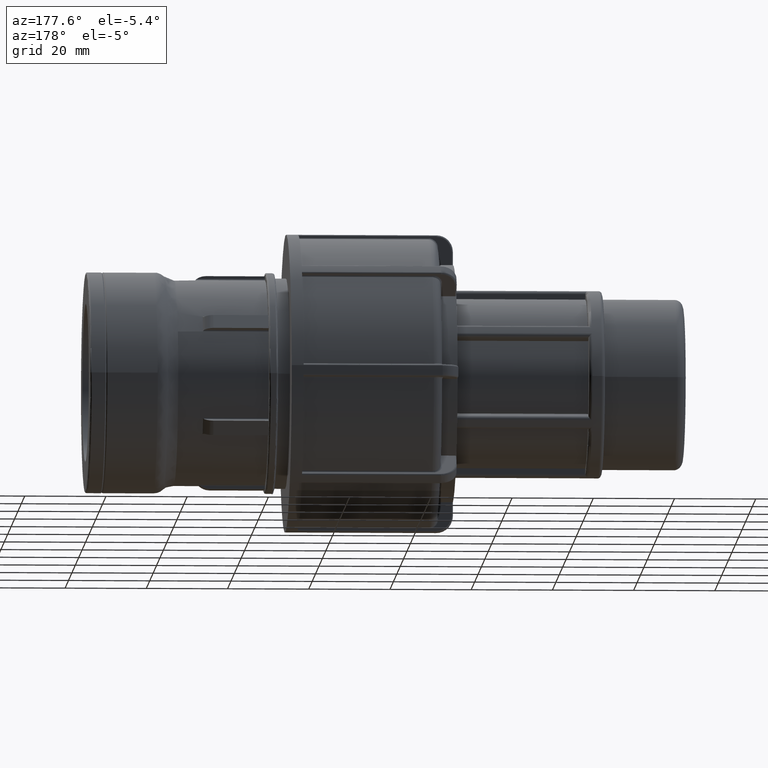
[diagram: clean part render]
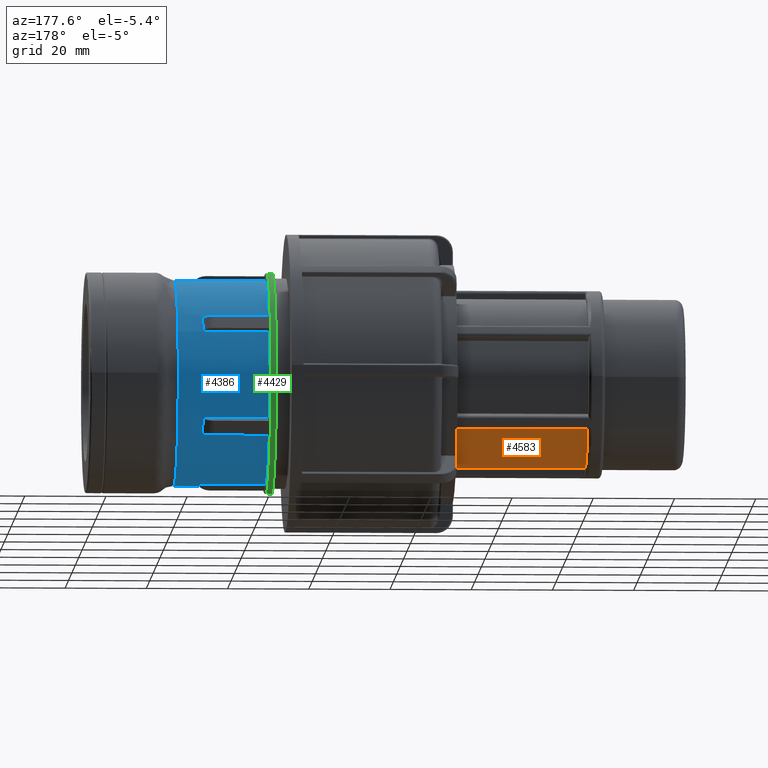
[diagram: same view with three faces highlighted in distinct colors, each labeled with its STEP entity id]
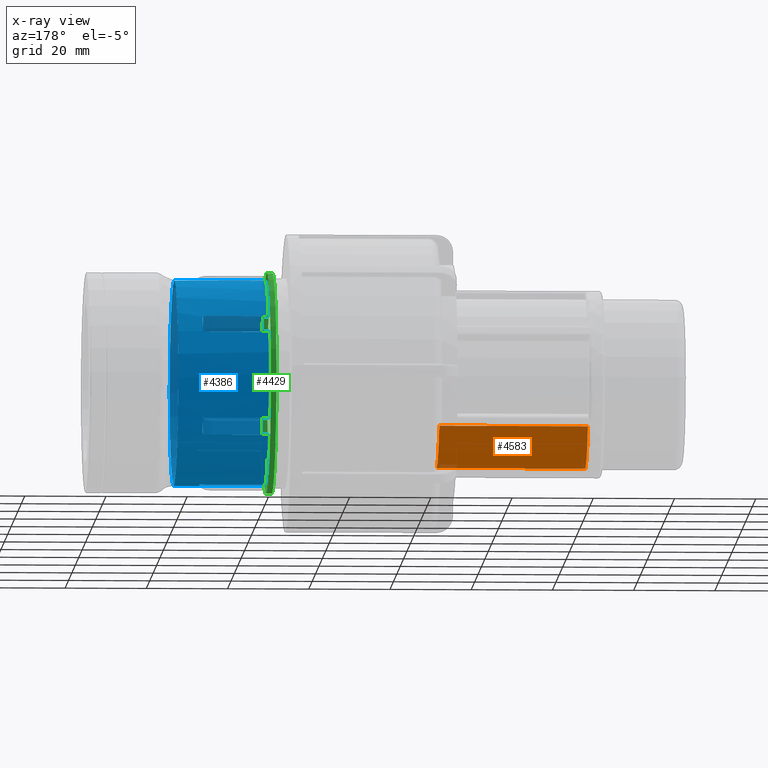
[diagram: x-ray of the same camera — body ghosted, the three highlighted faces saturated]
A machine part, auxiliary view with three faces highlighted in distinct colors.
The next image is the same camera in x-ray (body ghosted, the three faces saturated) — at least one of them is partly hidden behind the body in this view.
Their STEP definitions:

[orange] entity #4583 — the highlighted cylindrical surface (partial cylindrical patch) has radius 20.955 mm, axis along (1, 0, 0).
#186=LINE('',#6652,#465);
#423=LINE('',#9410,#702);
#465=VECTOR('',#5231,36.595);
#702=VECTOR('',#6212,36.595);
#827=CYLINDRICAL_SURFACE('',#5055,20.955);
#1068=FACE_OUTER_BOUND('',#1353,.T.);
#1353=EDGE_LOOP('',(#4183,#4184,#4185,#4186));
#1786=CIRCLE('',#5046,20.955);
#1791=CIRCLE('',#5056,20.955);
#1867=VERTEX_POINT('',#6649);
#1868=VERTEX_POINT('',#6651);
#2246=VERTEX_POINT('',#9407);
#2247=VERTEX_POINT('',#9409);
#2333=EDGE_CURVE('',#1868,#1867,#186,.T.);
#2907=EDGE_CURVE('',#2247,#2246,#423,.T.);
#2921=EDGE_CURVE('',#2247,#1867,#1786,.T.);
#2927=EDGE_CURVE('',#2246,#1868,#1791,.T.);
#4183=ORIENTED_EDGE('',*,*,#2333,.T.);
#4184=ORIENTED_EDGE('',*,*,#2921,.F.);
#4185=ORIENTED_EDGE('',*,*,#2907,.T.);
#4186=ORIENTED_EDGE('',*,*,#2927,.T.);
#4583=ADVANCED_FACE('',(#1068),#827,.T.);
#5046=AXIS2_PLACEMENT_3D('',#9433,#6237,#6238);
#5055=AXIS2_PLACEMENT_3D('',#9444,#6256,#6257);
#5056=AXIS2_PLACEMENT_3D('',#9445,#6258,#6259);
#5231=DIRECTION('',(1.,0.,0.));
#6212=DIRECTION('',(-1.,0.,0.));
#6237=DIRECTION('center_axis',(1.,0.,0.));
#6238=DIRECTION('ref_axis',(0.,0.,-1.));
#6256=DIRECTION('center_axis',(1.,0.,0.));
#6257=DIRECTION('ref_axis',(0.,1.,0.));
#6258=DIRECTION('center_axis',(1.,0.,0.));
#6259=DIRECTION('ref_axis',(0.,0.,-1.));
#6649=CARTESIAN_POINT('',(-86.405,17.2511969227832,-11.8957231697511));
#6651=CARTESIAN_POINT('',(-123.,17.2511969227832,-11.8957231697511));
#6652=CARTESIAN_POINT('',(-104.7025,17.2511969227832,-11.8957231697511));
#9407=CARTESIAN_POINT('',(-123.,1.6764,-20.8878363656938));
#9409=CARTESIAN_POINT('',(-86.405,1.6764,-20.8878363656938));
#9410=CARTESIAN_POINT('',(-104.7025,1.6764,-20.8878363656938));
#9433=CARTESIAN_POINT('Origin',(-86.405,0.,0.));
#9444=CARTESIAN_POINT('Origin',(-104.7025,0.,0.));
#9445=CARTESIAN_POINT('Origin',(-123.,0.,0.));

[blue] entity #4386 — the highlighted cylindrical surface (bore or boss wall) has radius 25.3188 mm, axis along (1, 0, 0).
#54=FACE_BOUND('',#1143,.T.);
#202=LINE('',#6797,#481);
#221=LINE('',#6888,#500);
#222=LINE('',#6890,#501);
#223=LINE('',#6903,#502);
#224=LINE('',#6905,#503);
#225=LINE('',#6923,#504);
#226=LINE('',#6925,#505);
#227=LINE('',#6943,#506);
#228=LINE('',#6945,#507);
#229=LINE('',#6963,#508);
#230=LINE('',#6965,#509);
#231=LINE('',#6983,#510);
#481=VECTOR('',#5293,16.1496986448987);
#500=VECTOR('',#5352,16.1496986448987);
#501=VECTOR('',#5353,17.2209);
#502=VECTOR('',#5356,17.2209);
#503=VECTOR('',#5357,16.1496986448987);
#504=VECTOR('',#5358,16.1496986448987);
#505=VECTOR('',#5359,16.1496986448987);
#506=VECTOR('',#5360,16.1496986448987);
#507=VECTOR('',#5361,16.1496986448987);
#508=VECTOR('',#5362,16.1496986448987);
#509=VECTOR('',#5363,16.1496986448987);
#510=VECTOR('',#5364,16.1496986448987);
#728=CYLINDRICAL_SURFACE('',#4708,25.3188);
#871=FACE_OUTER_BOUND('',#1142,.T.);
#1142=EDGE_LOOP('',(#3143,#3144,#3145,#3146,#3147,#3148,#3149,#3150,#3151,
#3152,#3153,#3154,#3155,#3156,#3157,#3158,#3159,#3160,#3161,#3162,#3163,
#3164,#3165,#3166,#3167,#3168,#3169,#3170,#3171,#3172,#3173,#3174,#3175,
#3176,#3177,#3178));
#1143=EDGE_LOOP('',(#3179));
#1428=B_SPLINE_CURVE_WITH_KNOTS('',3,(#6872,#6873,#6874,#6875),
 .UNSPECIFIED.,.F.,.F.,(4,4),(1.57851281696268,1.6129258981752),
 .UNSPECIFIED.);
#1429=B_SPLINE_CURVE_WITH_KNOTS('',3,(#6877,#6878,#6879,#6880,#6881,#6882),
 .UNSPECIFIED.,.F.,.F.,(4,2,4),(1.39834603884379,1.59196182486763,1.78557761089148),
 .UNSPECIFIED.);
#1430=B_SPLINE_CURVE_WITH_KNOTS('',3,(#6884,#6885,#6886,#6887),
 .UNSPECIFIED.,.F.,.F.,(4,4),(1.48958647678256,1.52428334298028),
 .UNSPECIFIED.);
#1431=B_SPLINE_CURVE_WITH_KNOTS('',3,(#6892,#6893,#6894,#6895),
 .UNSPECIFIED.,.F.,.F.,(4,4),(0.357953836419593,0.390020201098147),
 .UNSPECIFIED.);
#1432=B_SPLINE_CURVE_WITH_KNOTS('',3,(#6899,#6900,#6901,#6902),
 .UNSPECIFIED.,.F.,.F.,(4,4),(0.739499519659442,0.771565884337997),
 .UNSPECIFIED.);
#1433=B_SPLINE_CURVE_WITH_KNOTS('',3,(#6907,#6908,#6909,#6910),
 .UNSPECIFIED.,.F.,.F.,(4,4),(4.96667886814446,5.00137573434218),
 .UNSPECIFIED.);
#1434=B_SPLINE_CURVE_WITH_KNOTS('',3,(#6912,#6913,#6914,#6915,#6916,#6917),
 .UNSPECIFIED.,.F.,.F.,(4,2,4),(1.19962548948259,1.39207850326239,1.5845315170422),
 .UNSPECIFIED.);
#1435=B_SPLINE_CURVE_WITH_KNOTS('',3,(#6919,#6920,#6921,#6922),
 .UNSPECIFIED.,.F.,.F.,(4,4),(1.49458219756438,1.5289952787769),
 .UNSPECIFIED.);
#1436=B_SPLINE_CURVE_WITH_KNOTS('',3,(#6927,#6928,#6929,#6930),
 .UNSPECIFIED.,.F.,.F.,(4,4),(1.57851281696269,1.6129258981752),
 .UNSPECIFIED.);
#1437=B_SPLINE_CURVE_WITH_KNOTS('',3,(#6932,#6933,#6934,#6935,#6936,#6937),
 .UNSPECIFIED.,.F.,.F.,(4,2,4),(1.39834603884379,1.59196182486763,1.78557761089147),
 .UNSPECIFIED.);
#1438=B_SPLINE_CURVE_WITH_KNOTS('',3,(#6939,#6940,#6941,#6942),
 .UNSPECIFIED.,.F.,.F.,(4,4),(1.48958647678255,1.52428334298028),
 .UNSPECIFIED.);
#1439=B_SPLINE_CURVE_WITH_KNOTS('',3,(#6947,#6948,#6949,#6950),
 .UNSPECIFIED.,.F.,.F.,(4,4),(1.43114877043513,1.4653276205383),
 .UNSPECIFIED.);
#1440=B_SPLINE_CURVE_WITH_KNOTS('',3,(#6952,#6953,#6954,#6955,#6956,#6957),
 .UNSPECIFIED.,.F.,.F.,(4,2,4),(1.19962548948259,1.39207850326239,1.5845315170422),
 .UNSPECIFIED.);
#1441=B_SPLINE_CURVE_WITH_KNOTS('',3,(#6959,#6960,#6961,#6962),
 .UNSPECIFIED.,.F.,.F.,(4,4),(1.33825235572815,1.37243120583131),
 .UNSPECIFIED.);
#1442=B_SPLINE_CURVE_WITH_KNOTS('',3,(#6967,#6968,#6969,#6970),
 .UNSPECIFIED.,.F.,.F.,(4,4),(4.96667886814445,5.00137573434218),
 .UNSPECIFIED.);
#1443=B_SPLINE_CURVE_WITH_KNOTS('',3,(#6972,#6973,#6974,#6975,#6976,#6977),
 .UNSPECIFIED.,.F.,.F.,(4,2,4),(1.19962548948259,1.39207850326239,1.5845315170422),
 .UNSPECIFIED.);
#1444=B_SPLINE_CURVE_WITH_KNOTS('',3,(#6979,#6980,#6981,#6982),
 .UNSPECIFIED.,.F.,.F.,(4,4),(1.49458219756438,1.52899527877689),
 .UNSPECIFIED.);
#1591=CIRCLE('',#4691,25.3188);
#1594=CIRCLE('',#4694,25.3188);
#1597=CIRCLE('',#4697,25.3188);
#1600=CIRCLE('',#4700,25.3188);
#1603=CIRCLE('',#4703,25.3188);
#1606=CIRCLE('',#4706,25.3188);
#1608=CIRCLE('',#4709,25.3188);
#1609=CIRCLE('',#4710,25.3188);
#1890=VERTEX_POINT('',#6782);
#1892=VERTEX_POINT('',#6786);
#1894=VERTEX_POINT('',#6801);
#1899=VERTEX_POINT('',#6811);
#1900=VERTEX_POINT('',#6813);
#1905=VERTEX_POINT('',#6823);
#1906=VERTEX_POINT('',#6825);
#1911=VERTEX_POINT('',#6835);
#1912=VERTEX_POINT('',#6837);
#1917=VERTEX_POINT('',#6847);
#1918=VERTEX_POINT('',#6849);
#1923=VERTEX_POINT('',#6859);
#1924=VERTEX_POINT('',#6861);
#1928=VERTEX_POINT('',#6871);
#1929=VERTEX_POINT('',#6876);
#1930=VERTEX_POINT('',#6883);
#1931=VERTEX_POINT('',#6889);
#1932=VERTEX_POINT('',#6891);
#1933=VERTEX_POINT('',#6896);
#1934=VERTEX_POINT('',#6898);
#1935=VERTEX_POINT('',#6904);
#1936=VERTEX_POINT('',#6906);
#1937=VERTEX_POINT('',#6911);
#1938=VERTEX_POINT('',#6918);
#1939=VERTEX_POINT('',#6924);
#1940=VERTEX_POINT('',#6926);
#1941=VERTEX_POINT('',#6931);
#1942=VERTEX_POINT('',#6938);
#1943=VERTEX_POINT('',#6944);
#1944=VERTEX_POINT('',#6946);
#1945=VERTEX_POINT('',#6951);
#1946=VERTEX_POINT('',#6958);
#1947=VERTEX_POINT('',#6964);
#1948=VERTEX_POINT('',#6966);
#1949=VERTEX_POINT('',#6971);
#1950=VERTEX_POINT('',#6978);
#1951=VERTEX_POINT('',#6984);
#2368=EDGE_CURVE('',#1892,#1890,#202,.T.);
#2370=EDGE_CURVE('',#1894,#1890,#1591,.T.);
#2376=EDGE_CURVE('',#1900,#1899,#1594,.T.);
#2382=EDGE_CURVE('',#1906,#1905,#1597,.T.);
#2388=EDGE_CURVE('',#1912,#1911,#1600,.T.);
#2394=EDGE_CURVE('',#1918,#1917,#1603,.T.);
#2400=EDGE_CURVE('',#1924,#1923,#1606,.T.);
#2405=EDGE_CURVE('',#1892,#1928,#1428,.T.);
#2406=EDGE_CURVE('',#1928,#1929,#1429,.T.);
#2407=EDGE_CURVE('',#1929,#1930,#1430,.T.);
#2408=EDGE_CURVE('',#1924,#1930,#221,.T.);
#2409=EDGE_CURVE('',#1931,#1923,#222,.T.);
#2410=EDGE_CURVE('',#1931,#1932,#1431,.T.);
#2411=EDGE_CURVE('',#1932,#1933,#1608,.T.);
#2412=EDGE_CURVE('',#1933,#1934,#1432,.T.);
#2413=EDGE_CURVE('',#1918,#1934,#223,.T.);
#2414=EDGE_CURVE('',#1935,#1917,#224,.T.);
#2415=EDGE_CURVE('',#1935,#1936,#1433,.T.);
#2416=EDGE_CURVE('',#1936,#1937,#1434,.T.);
#2417=EDGE_CURVE('',#1937,#1938,#1435,.T.);
#2418=EDGE_CURVE('',#1912,#1938,#225,.T.);
#2419=EDGE_CURVE('',#1939,#1911,#226,.T.);
#2420=EDGE_CURVE('',#1939,#1940,#1436,.T.);
#2421=EDGE_CURVE('',#1940,#1941,#1437,.T.);
#2422=EDGE_CURVE('',#1941,#1942,#1438,.T.);
#2423=EDGE_CURVE('',#1906,#1942,#227,.T.);
#2424=EDGE_CURVE('',#1943,#1905,#228,.T.);
#2425=EDGE_CURVE('',#1943,#1944,#1439,.T.);
#2426=EDGE_CURVE('',#1944,#1945,#1440,.T.);
#2427=EDGE_CURVE('',#1945,#1946,#1441,.T.);
#2428=EDGE_CURVE('',#1900,#1946,#229,.T.);
#2429=EDGE_CURVE('',#1947,#1899,#230,.T.);
#2430=EDGE_CURVE('',#1947,#1948,#1442,.T.);
#2431=EDGE_CURVE('',#1948,#1949,#1443,.T.);
#2432=EDGE_CURVE('',#1949,#1950,#1444,.T.);
#2433=EDGE_CURVE('',#1894,#1950,#231,.T.);
#2434=EDGE_CURVE('',#1951,#1951,#1609,.T.);
#3143=ORIENTED_EDGE('',*,*,#2368,.F.);
#3144=ORIENTED_EDGE('',*,*,#2405,.T.);
#3145=ORIENTED_EDGE('',*,*,#2406,.T.);
#3146=ORIENTED_EDGE('',*,*,#2407,.T.);
#3147=ORIENTED_EDGE('',*,*,#2408,.F.);
#3148=ORIENTED_EDGE('',*,*,#2400,.T.);
#3149=ORIENTED_EDGE('',*,*,#2409,.F.);
#3150=ORIENTED_EDGE('',*,*,#2410,.T.);
#3151=ORIENTED_EDGE('',*,*,#2411,.T.);
#3152=ORIENTED_EDGE('',*,*,#2412,.T.);
#3153=ORIENTED_EDGE('',*,*,#2413,.F.);
#3154=ORIENTED_EDGE('',*,*,#2394,.T.);
#3155=ORIENTED_EDGE('',*,*,#2414,.F.);
#3156=ORIENTED_EDGE('',*,*,#2415,.T.);
#3157=ORIENTED_EDGE('',*,*,#2416,.T.);
#3158=ORIENTED_EDGE('',*,*,#2417,.T.);
#3159=ORIENTED_EDGE('',*,*,#2418,.F.);
#3160=ORIENTED_EDGE('',*,*,#2388,.T.);
#3161=ORIENTED_EDGE('',*,*,#2419,.F.);
#3162=ORIENTED_EDGE('',*,*,#2420,.T.);
#3163=ORIENTED_EDGE('',*,*,#2421,.T.);
#3164=ORIENTED_EDGE('',*,*,#2422,.T.);
#3165=ORIENTED_EDGE('',*,*,#2423,.F.);
#3166=ORIENTED_EDGE('',*,*,#2382,.T.);
#3167=ORIENTED_EDGE('',*,*,#2424,.F.);
#3168=ORIENTED_EDGE('',*,*,#2425,.T.);
#3169=ORIENTED_EDGE('',*,*,#2426,.T.);
#3170=ORIENTED_EDGE('',*,*,#2427,.T.);
#3171=ORIENTED_EDGE('',*,*,#2428,.F.);
#3172=ORIENTED_EDGE('',*,*,#2376,.T.);
#3173=ORIENTED_EDGE('',*,*,#2429,.F.);
#3174=ORIENTED_EDGE('',*,*,#2430,.T.);
#3175=ORIENTED_EDGE('',*,*,#2431,.T.);
#3176=ORIENTED_EDGE('',*,*,#2432,.T.);
#3177=ORIENTED_EDGE('',*,*,#2433,.F.);
#3178=ORIENTED_EDGE('',*,*,#2370,.T.);
#3179=ORIENTED_EDGE('',*,*,#2434,.F.);
#4386=ADVANCED_FACE('',(#871,#54),#728,.T.);
#4691=AXIS2_PLACEMENT_3D('',#6802,#5298,#5299);
#4694=AXIS2_PLACEMENT_3D('',#6814,#5307,#5308);
#4697=AXIS2_PLACEMENT_3D('',#6826,#5316,#5317);
#4700=AXIS2_PLACEMENT_3D('',#6838,#5325,#5326);
#4703=AXIS2_PLACEMENT_3D('',#6850,#5334,#5335);
#4706=AXIS2_PLACEMENT_3D('',#6862,#5343,#5344);
#4708=AXIS2_PLACEMENT_3D('',#6870,#5350,#5351);
#4709=AXIS2_PLACEMENT_3D('',#6897,#5354,#5355);
#4710=AXIS2_PLACEMENT_3D('',#6985,#5365,#5366);
#5293=DIRECTION('',(-1.,0.,0.));
#5298=DIRECTION('center_axis',(1.,0.,0.));
#5299=DIRECTION('ref_axis',(0.,0.,-1.));
#5307=DIRECTION('center_axis',(1.,0.,0.));
#5308=DIRECTION('ref_axis',(0.,0.,-1.));
#5316=DIRECTION('center_axis',(1.,0.,0.));
#5317=DIRECTION('ref_axis',(0.,0.,-1.));
#5325=DIRECTION('center_axis',(1.,0.,0.));
#5326=DIRECTION('ref_axis',(0.,0.,-1.));
#5334=DIRECTION('center_axis',(1.,0.,0.));
#5335=DIRECTION('ref_axis',(0.,0.,-1.));
#5343=DIRECTION('center_axis',(1.,0.,0.));
#5344=DIRECTION('ref_axis',(0.,0.,-1.));
#5350=DIRECTION('center_axis',(1.,0.,0.));
#5351=DIRECTION('ref_axis',(0.,1.,0.));
#5352=DIRECTION('',(1.,0.,0.));
#5353=DIRECTION('',(-1.,0.,0.));
#5354=DIRECTION('center_axis',(1.,0.,0.));
#5355=DIRECTION('ref_axis',(0.,1.,0.));
#5356=DIRECTION('',(1.,0.,0.));
#5357=DIRECTION('',(-1.,0.,0.));
#5358=DIRECTION('',(1.,0.,0.));
#5359=DIRECTION('',(-1.,0.,0.));
#5360=DIRECTION('',(1.,0.,0.));
#5361=DIRECTION('',(-1.,0.,0.));
#5362=DIRECTION('',(1.,0.,0.));
#5363=DIRECTION('',(-1.,0.,0.));
#5364=DIRECTION('',(1.,0.,0.));
#5365=DIRECTION('center_axis',(1.,0.,0.));
#5366=DIRECTION('ref_axis',(0.,1.,-6.12323399573677E-17));
#6782=CARTESIAN_POINT('',(-44.1,22.9867842606194,10.6136413542073));
#6786=CARTESIAN_POINT('',(-27.9503013551013,22.9867842606194,10.6136413542073));
#6797=CARTESIAN_POINT('',(-32.05,22.9867842606194,10.6136413542073));
#6801=CARTESIAN_POINT('',(-44.1,22.9867842606194,-10.6136413542073));
#6802=CARTESIAN_POINT('Origin',(-44.1,0.,0.));
#6811=CARTESIAN_POINT('',(-44.1,20.6850751697103,-14.6003184439051));
#6813=CARTESIAN_POINT('',(-44.1,2.30170909090908,-25.2139597981124));
#6814=CARTESIAN_POINT('Origin',(-44.1,0.,0.));
#6823=CARTESIAN_POINT('',(-44.1,-2.30170909090909,-25.2139597981124));
#6825=CARTESIAN_POINT('',(-44.1,-20.6850751697103,-14.600318443905));
#6826=CARTESIAN_POINT('Origin',(-44.1,0.,0.));
#6835=CARTESIAN_POINT('',(-44.1,-22.9867842606194,-10.6136413542073));
#6837=CARTESIAN_POINT('',(-44.1,-22.9867842606194,10.6136413542073));
#6838=CARTESIAN_POINT('Origin',(-44.1,0.,0.));
#6847=CARTESIAN_POINT('',(-44.1,-20.6850751697103,14.600318443905));
#6849=CARTESIAN_POINT('',(-44.1,-2.30170909090909,25.2139597981124));
#6850=CARTESIAN_POINT('Origin',(-44.1,0.,0.));
#6859=CARTESIAN_POINT('',(-44.1,2.30170909090909,25.2139597981124));
#6861=CARTESIAN_POINT('',(-44.1,20.6850751697103,14.600318443905));
#6862=CARTESIAN_POINT('Origin',(-44.1,0.,0.));
#6870=CARTESIAN_POINT('Origin',(-32.05,0.,0.));
#6871=CARTESIAN_POINT('',(-27.9803825608439,22.8355557794428,10.9352195078086));
#6872=CARTESIAN_POINT('Ctrl Pts',(-27.9503013551013,22.9867842606194,10.6136413542073));
#6873=CARTESIAN_POINT('Ctrl Pts',(-27.9610591444012,22.9370355391453,10.7213860093736));
#6874=CARTESIAN_POINT('Ctrl Pts',(-27.9711031072261,22.8866144426041,10.82859586392));
#6875=CARTESIAN_POINT('Ctrl Pts',(-27.9803825608439,22.8355557794428,10.9352195078086));
#6876=CARTESIAN_POINT('',(-27.9803825608439,20.8879557794428,14.3085616606297));
#6877=CARTESIAN_POINT('Ctrl Pts',(-27.9803825608439,22.8355557794428,10.9352195078086));
#6878=CARTESIAN_POINT('Ctrl Pts',(-28.0316699958646,22.5533551265835,11.524527179663));
#6879=CARTESIAN_POINT('Ctrl Pts',(-28.059239449688,22.2494169700439,12.1004793690988));
#6880=CARTESIAN_POINT('Ctrl Pts',(-28.059239449688,21.6040310166311,13.2183206309011));
#6881=CARTESIAN_POINT('Ctrl Pts',(-28.0316699958646,21.2572108674841,13.7695148903618));
#6882=CARTESIAN_POINT('Ctrl Pts',(-27.9803825608439,20.8879557794428,14.3085616606297));
#6883=CARTESIAN_POINT('',(-27.9503013551013,20.6850751697103,14.600318443905));
#6884=CARTESIAN_POINT('Ctrl Pts',(-27.9803825608439,20.8879557794428,14.3085616606297));
#6885=CARTESIAN_POINT('Ctrl Pts',(-27.9710985237459,20.8211133270052,14.4061397557465));
#6886=CARTESIAN_POINT('Ctrl Pts',(-27.9610538385525,20.7534766645245,14.503410279375));
#6887=CARTESIAN_POINT('Ctrl Pts',(-27.9503013551013,20.6850751697103,14.600318443905));
#6888=CARTESIAN_POINT('',(-32.05,20.6850751697103,14.600318443905));
#6889=CARTESIAN_POINT('',(-26.8791,2.30170909090909,25.2139597981124));
#6890=CARTESIAN_POINT('',(-32.05,2.30170909090909,25.2139597981124));
#6891=CARTESIAN_POINT('',(-26.8791,1.9476,25.2437811684383));
#6892=CARTESIAN_POINT('Ctrl Pts',(-26.8791,2.30170909090909,25.2139597981124));
#6893=CARTESIAN_POINT('Ctrl Pts',(-26.8791,2.18393524268773,25.2247110303382));
#6894=CARTESIAN_POINT('Ctrl Pts',(-26.8791,2.0658845751584,25.2346287449355));
#6895=CARTESIAN_POINT('Ctrl Pts',(-26.8791,1.9476000106147,25.2437129419044));
#6896=CARTESIAN_POINT('',(-26.8791,-1.9476,25.2437811684383));
#6897=CARTESIAN_POINT('Origin',(-26.8791,0.,0.));
#6898=CARTESIAN_POINT('',(-26.8791,-2.30170909090909,25.2139597981124));
#6899=CARTESIAN_POINT('Ctrl Pts',(-26.8791,-1.9476000106147,25.2437129419044));
#6900=CARTESIAN_POINT('Ctrl Pts',(-26.8791,-2.0658845751584,25.2346287449355));
#6901=CARTESIAN_POINT('Ctrl Pts',(-26.8791,-2.18393524268773,25.2247110303382));
#6902=CARTESIAN_POINT('Ctrl Pts',(-26.8791,-2.30170909090909,25.2139597981124));
#6903=CARTESIAN_POINT('',(-32.05,-2.30170909090909,25.2139597981124));
#6904=CARTESIAN_POINT('',(-27.9503013551013,-20.6850751697103,14.600318443905));
#6905=CARTESIAN_POINT('',(-32.05,-20.6850751697103,14.600318443905));
#6906=CARTESIAN_POINT('',(-27.9803825608439,-20.8879557794428,14.3085616606297));
#6907=CARTESIAN_POINT('Ctrl Pts',(-27.9503013551013,-20.6850751697103,14.600318443905));
#6908=CARTESIAN_POINT('Ctrl Pts',(-27.9610536917865,-20.7534757308781,14.5034116021234));
#6909=CARTESIAN_POINT('Ctrl Pts',(-27.9710985274143,-20.821113353417,14.4061397171901));
#6910=CARTESIAN_POINT('Ctrl Pts',(-27.9803825608439,-20.8879557794428,14.3085616606297));
#6911=CARTESIAN_POINT('',(-27.9803825608439,-22.8355557794428,10.9352195078086));
#6912=CARTESIAN_POINT('Ctrl Pts',(-27.9803825608439,-20.8879557794428,14.3085616606297));
#6913=CARTESIAN_POINT('Ctrl Pts',(-28.0319448336229,-21.2591896219412,13.7666262607024));
#6914=CARTESIAN_POINT('Ctrl Pts',(-28.059239449688,-21.6059689703711,13.2149639965606));
#6915=CARTESIAN_POINT('Ctrl Pts',(-28.059239449688,-22.2474790163038,12.1038360034394));
#6916=CARTESIAN_POINT('Ctrl Pts',(-28.0319448336229,-22.5518428771448,11.5276851461203));
#6917=CARTESIAN_POINT('Ctrl Pts',(-27.9803825608439,-22.8355557794428,10.9352195078086));
#6918=CARTESIAN_POINT('',(-27.9503013551013,-22.9867842606194,10.6136413542073));
#6919=CARTESIAN_POINT('Ctrl Pts',(-27.9803825608439,-22.8355557794428,10.9352195078086));
#6920=CARTESIAN_POINT('Ctrl Pts',(-27.9711030799188,-22.8866145928579,10.8285955501513));
#6921=CARTESIAN_POINT('Ctrl Pts',(-27.9610592965873,-22.9370348353702,10.7213875335938));
#6922=CARTESIAN_POINT('Ctrl Pts',(-27.9503013551013,-22.9867842606194,10.6136413542073));
#6923=CARTESIAN_POINT('',(-32.05,-22.9867842606194,10.6136413542073));
#6924=CARTESIAN_POINT('',(-27.9503013551013,-22.9867842606194,-10.6136413542073));
#6925=CARTESIAN_POINT('',(-32.05,-22.9867842606194,-10.6136413542073));
#6926=CARTESIAN_POINT('',(-27.9803825608439,-22.8355557794428,-10.9352195078086));
#6927=CARTESIAN_POINT('Ctrl Pts',(-27.9503013551013,-22.9867842606194,-10.6136413542073));
#6928=CARTESIAN_POINT('Ctrl Pts',(-27.9610591444012,-22.9370355391453,-10.7213860093736));
#6929=CARTESIAN_POINT('Ctrl Pts',(-27.9711031072261,-22.8866144426041,-10.8285958639201));
#6930=CARTESIAN_POINT('Ctrl Pts',(-27.9803825608439,-22.8355557794428,-10.9352195078086));
#6931=CARTESIAN_POINT('',(-27.9803825608439,-20.8879557794428,-14.3085616606297));
#6932=CARTESIAN_POINT('Ctrl Pts',(-27.9803825608439,-22.8355557794428,-10.9352195078086));
#6933=CARTESIAN_POINT('Ctrl Pts',(-28.0316699958646,-22.5533551265835,-11.524527179663));
#6934=CARTESIAN_POINT('Ctrl Pts',(-28.059239449688,-22.2494169700439,-12.1004793690989));
#6935=CARTESIAN_POINT('Ctrl Pts',(-28.059239449688,-21.604031016631,-13.2183206309011));
#6936=CARTESIAN_POINT('Ctrl Pts',(-28.0316699958646,-21.2572108674841,-13.7695148903618));
#6937=CARTESIAN_POINT('Ctrl Pts',(-27.9803825608439,-20.8879557794428,-14.3085616606297));
#6938=CARTESIAN_POINT('',(-27.9503013551013,-20.6850751697103,-14.600318443905));
#6939=CARTESIAN_POINT('Ctrl Pts',(-27.9803825608439,-20.8879557794428,-14.3085616606297));
#6940=CARTESIAN_POINT('Ctrl Pts',(-27.9710985237459,-20.8211133270052,-14.4061397557465));
#6941=CARTESIAN_POINT('Ctrl Pts',(-27.9610538385525,-20.7534766645245,-14.503410279375));
#6942=CARTESIAN_POINT('Ctrl Pts',(-27.9503013551013,-20.6850751697103,-14.600318443905));
#6943=CARTESIAN_POINT('',(-32.05,-20.6850751697103,-14.600318443905));
#6944=CARTESIAN_POINT('',(-27.9503013551013,-2.30170909090909,-25.2139597981124));
#6945=CARTESIAN_POINT('',(-32.05,-2.30170909090909,-25.2139597981124));
#6946=CARTESIAN_POINT('',(-27.9803825608439,-1.9476,-25.2437811684383));
#6947=CARTESIAN_POINT('Ctrl Pts',(-27.9503013551013,-2.30170909090909,-25.2139597981124));
#6948=CARTESIAN_POINT('Ctrl Pts',(-27.9610630383415,-2.18348234324687,-25.2247523742115));
#6949=CARTESIAN_POINT('Ctrl Pts',(-27.9711064094557,-2.06542617073505,-25.2346906820095));
#6950=CARTESIAN_POINT('Ctrl Pts',(-27.9803825608439,-1.9476,-25.2437811684383));
#6951=CARTESIAN_POINT('',(-27.9803825608439,1.9476,-25.2437811684383));
#6952=CARTESIAN_POINT('Ctrl Pts',(-27.9803825608439,-1.9476,-25.2437811684383));
#6953=CARTESIAN_POINT('Ctrl Pts',(-28.0319448336229,-1.29265325520366,-25.2943114068227));
#6954=CARTESIAN_POINT('Ctrl Pts',(-28.059239449688,-0.641510045932696,-25.3188));
#6955=CARTESIAN_POINT('Ctrl Pts',(-28.059239449688,0.641510045932688,-25.3188));
#6956=CARTESIAN_POINT('Ctrl Pts',(-28.0319448336229,1.29265325520366,-25.2943114068227));
#6957=CARTESIAN_POINT('Ctrl Pts',(-27.9803825608439,1.9476,-25.2437811684383));
#6958=CARTESIAN_POINT('',(-27.9503013551013,2.30170909090908,-25.2139597981124));
#6959=CARTESIAN_POINT('Ctrl Pts',(-27.9803825608439,1.9476,-25.2437811684383));
#6960=CARTESIAN_POINT('Ctrl Pts',(-27.9711063723081,2.0654266425862,-25.2346906456054));
#6961=CARTESIAN_POINT('Ctrl Pts',(-27.961063175442,2.18348083707525,-25.2247525117056));
#6962=CARTESIAN_POINT('Ctrl Pts',(-27.9503013551013,2.30170909090908,-25.2139597981124));
#6963=CARTESIAN_POINT('',(-32.05,2.30170909090908,-25.2139597981124));
#6964=CARTESIAN_POINT('',(-27.9503013551013,20.6850751697103,-14.6003184439051));
#6965=CARTESIAN_POINT('',(-32.05,20.6850751697103,-14.6003184439051));
#6966=CARTESIAN_POINT('',(-27.9803825608439,20.8879557794428,-14.3085616606297));
#6967=CARTESIAN_POINT('Ctrl Pts',(-27.9503013551013,20.6850751697103,-14.6003184439051));
#6968=CARTESIAN_POINT('Ctrl Pts',(-27.9610536917865,20.753475730878,-14.5034116021234));
#6969=CARTESIAN_POINT('Ctrl Pts',(-27.9710985274143,20.8211133534169,-14.4061397171901));
#6970=CARTESIAN_POINT('Ctrl Pts',(-27.9803825608439,20.8879557794428,-14.3085616606297));
#6971=CARTESIAN_POINT('',(-27.9803825608439,22.8355557794428,-10.9352195078086));
#6972=CARTESIAN_POINT('Ctrl Pts',(-27.9803825608439,20.8879557794428,-14.3085616606297));
#6973=CARTESIAN_POINT('Ctrl Pts',(-28.0319448336229,21.2591896219411,-13.7666262607024));
#6974=CARTESIAN_POINT('Ctrl Pts',(-28.059239449688,21.6059689703711,-13.2149639965606));
#6975=CARTESIAN_POINT('Ctrl Pts',(-28.059239449688,22.2474790163038,-12.1038360034394));
#6976=CARTESIAN_POINT('Ctrl Pts',(-28.0319448336229,22.5518428771448,-11.5276851461204));
#6977=CARTESIAN_POINT('Ctrl Pts',(-27.9803825608439,22.8355557794428,-10.9352195078086));
#6978=CARTESIAN_POINT('',(-27.9503013551013,22.9867842606194,-10.6136413542073));
#6979=CARTESIAN_POINT('Ctrl Pts',(-27.9803825608439,22.8355557794428,-10.9352195078086));
#6980=CARTESIAN_POINT('Ctrl Pts',(-27.9711030799188,22.8866145928579,-10.8285955501513));
#6981=CARTESIAN_POINT('Ctrl Pts',(-27.9610592965873,22.9370348353702,-10.7213875335938));
#6982=CARTESIAN_POINT('Ctrl Pts',(-27.9503013551013,22.9867842606194,-10.6136413542073));
#6983=CARTESIAN_POINT('',(-32.05,22.9867842606194,-10.6136413542073));
#6984=CARTESIAN_POINT('',(-21.7795231006083,-25.3188,-1.5503293689126E-15));
#6985=CARTESIAN_POINT('Origin',(-21.7795231006083,0.,0.));

[green] entity #4429 — the highlighted cylindrical surface (bore or boss wall) has radius 27.2664 mm, axis along (1, 0, 0).
#62=FACE_BOUND('',#1194,.T.);
#747=CYLINDRICAL_SURFACE('',#4770,27.2664);
#914=FACE_OUTER_BOUND('',#1193,.T.);
#1193=EDGE_LOOP('',(#3358));
#1194=EDGE_LOOP('',(#3359));
#1627=CIRCLE('',#4769,27.2664);
#1628=CIRCLE('',#4771,27.2664);
#1982=VERTEX_POINT('',#7272);
#1983=VERTEX_POINT('',#7275);
#2494=EDGE_CURVE('',#1982,#1982,#1627,.T.);
#2495=EDGE_CURVE('',#1983,#1983,#1628,.T.);
#3358=ORIENTED_EDGE('',*,*,#2495,.F.);
#3359=ORIENTED_EDGE('',*,*,#2494,.F.);
#4429=ADVANCED_FACE('',(#914,#62),#747,.T.);
#4769=AXIS2_PLACEMENT_3D('',#7273,#5511,#5512);
#4770=AXIS2_PLACEMENT_3D('',#7274,#5513,#5514);
#4771=AXIS2_PLACEMENT_3D('',#7276,#5515,#5516);
#5511=DIRECTION('center_axis',(1.,0.,0.));
#5512=DIRECTION('ref_axis',(0.,-1.,1.83697019872103E-16));
#5513=DIRECTION('center_axis',(1.,0.,0.));
#5514=DIRECTION('ref_axis',(0.,1.,0.));
#5515=DIRECTION('center_axis',(-1.,0.,0.));
#5516=DIRECTION('ref_axis',(0.,-1.,1.83697019872103E-16));
#7272=CARTESIAN_POINT('',(-44.5191,27.2664,-1.66958547421357E-15));
#7273=CARTESIAN_POINT('Origin',(-44.5191,0.,0.));
#7274=CARTESIAN_POINT('Origin',(-45.2025,0.,0.));
#7275=CARTESIAN_POINT('',(-45.8859,27.2664,-8.34792737106785E-15));
#7276=CARTESIAN_POINT('Origin',(-45.8859,0.,0.));